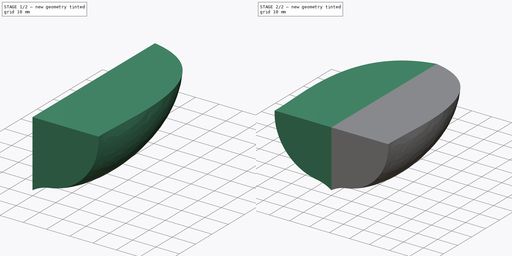
[diagram: build sequence overview — one tinted view per stage of 2, left to right]
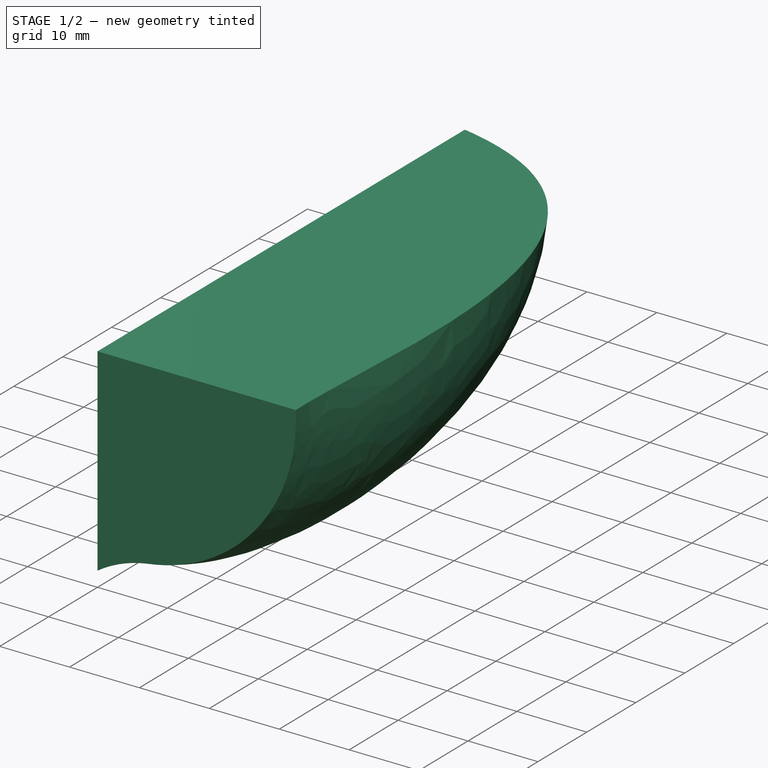
[diagram: stage 1 of 2 — iso view after this stage's code; geometry added in this stage tinted green]
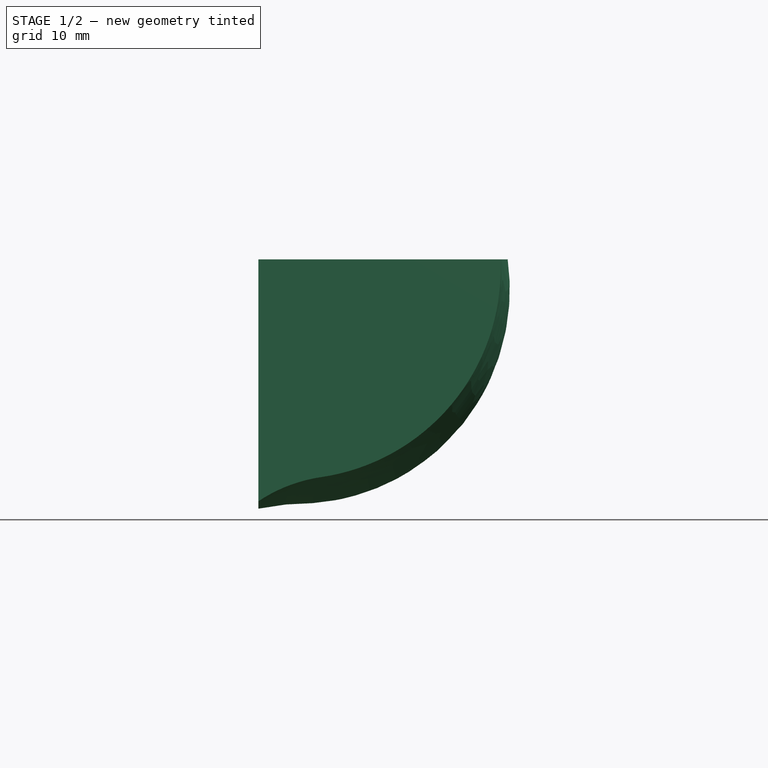
[diagram: stage 1 of 2 — front view after this stage's code; geometry added in this stage tinted green]
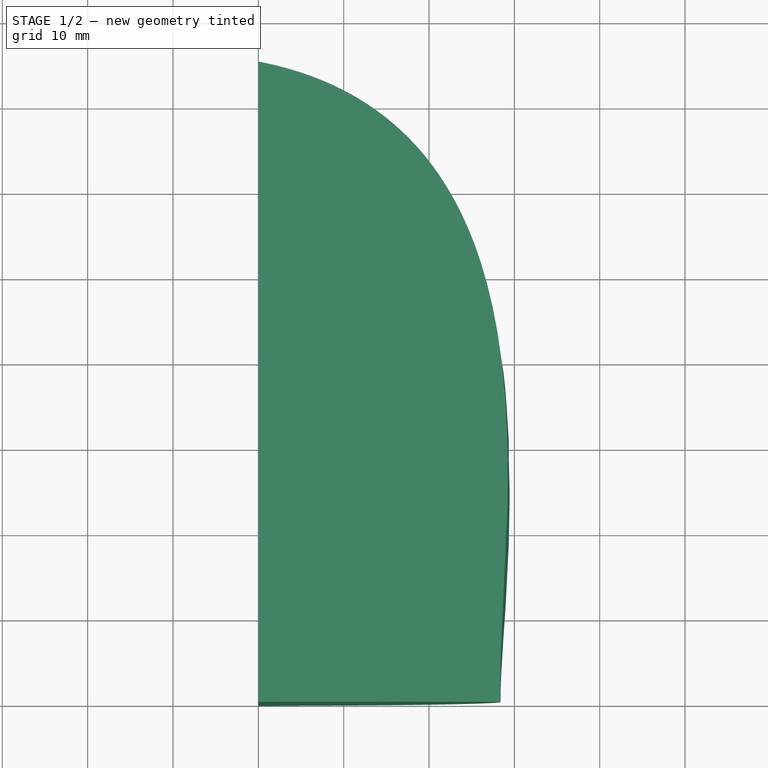
[diagram: stage 1 of 2 — top view after this stage's code; geometry added in this stage tinted green]
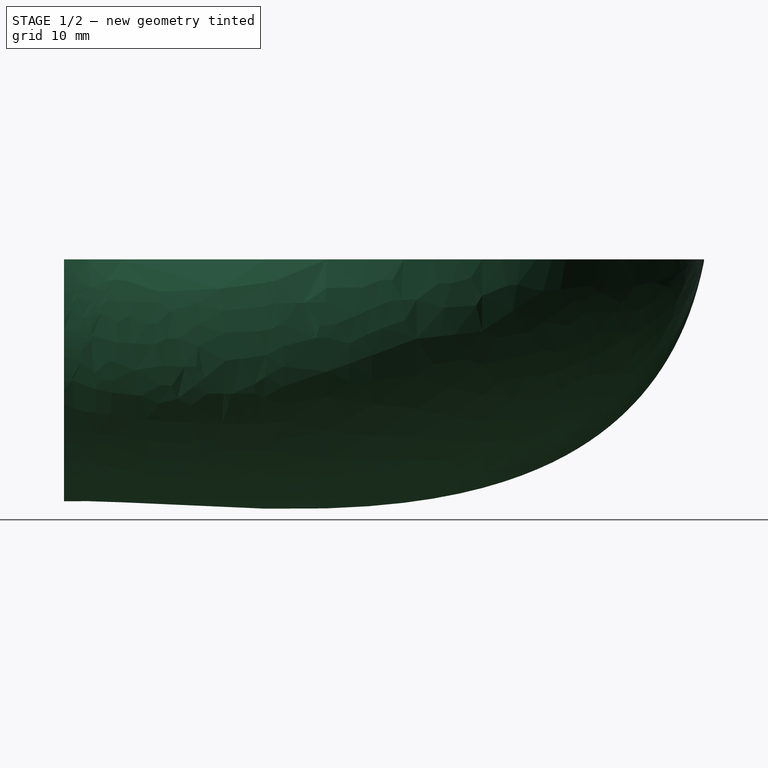
[diagram: stage 1 of 2 — right view after this stage's code; geometry added in this stage tinted green]
FCSTD DOCUMENT  (FreeCAD 0.20R29410 (Git))
Label: MangoJelly_Solutions_Tutorial_Ep11_4
License: All rights reserved
LicenseURL: http://en.wikipedia.org/wiki/All_rights_reserved
objects: Sketcher::SketchObject×4, Part::Loft×1, Part::Mirroring×1, Part::Fuse×1
note: 7 computed .brp shape members not serialized (recipe doc carries the construction recipe); baked Part::Feature solids carry a one-line shape summary decoded from their .brp

FEATURE [Sketcher::SketchObject] Sketch
  FullyConstrained = false
  Placement = pos=(0,0,0) rot=(1,0,0;1.5708rad)
  sketch-geometry (5):
    g0: LineSegment StartX=0 StartY=0 StartZ=0 EndX=-1.8e-15 EndY=-28.3554 EndZ=0
    g1: LineSegment StartX=0 StartY=0 StartZ=0 EndX=-28.3554 EndY=-2e-15 EndZ=0
    g2: GeomPoint X=-7.35991 Y=-25.5202 Z=0
    g3: ArcOfCircle CenterX=-3.80244 CenterY=-1.19681 CenterZ=0 NormalX=0 NormalY=0 NormalZ=1 AngleXU=0 Radius=24.5821 StartAngle=3.09289 EndAngle=4.56716
    g4: ArcOfCircle CenterX=-9.94636 CenterY=-43.2044 CenterZ=0 NormalX=0 NormalY=0 NormalZ=1 AngleXU=0 Radius=17.8724 StartAngle=0.980604 EndAngle=1.42557
  constraints (9):
    c: Coincident(g0,g-1)
    c: PointOnObject(g0,g-2)
    c: Coincident(g1,g0)
    c: PointOnObject(g1,g-1)
    c: Coincident(g3,g1)
    c: Coincident(g3,g2)
    c: Coincident(g4,g0)
    c: Tangent(g4,g3) = 1.5708
    c: Equal(g0,g1)
FEATURE [Sketcher::SketchObject] Sketch001
  FullyConstrained = false
  Placement = pos=(0,45,0) rot=(1,0,0;1.5708rad)
  sketch-geometry (5):
    g0: LineSegment StartX=0 StartY=0 StartZ=0 EndX=1.8e-15 EndY=-27.7199 EndZ=0
    g1: LineSegment StartX=0 StartY=0 StartZ=0 EndX=-27.7199 EndY=0 EndZ=0
    g2: GeomPoint X=-6.56665 Y=-25.562 Z=0
    g3: ArcOfCircle CenterX=-2.6976 CenterY=-0.826855 CenterZ=0 NormalX=0 NormalY=0 NormalZ=1 AngleXU=0 Radius=25.0359 StartAngle=3.10856 EndAngle=4.55723
    g4: ArcOfCircle CenterX=-9.87134 CenterY=-46.6892 CenterZ=0 NormalX=0 NormalY=0 NormalZ=1 AngleXU=0 Radius=21.384 StartAngle=1.09097 EndAngle=1.41563
  constraints (9):
    c: Coincident(g0,g-1)
    c: PointOnObject(g0,g-2)
    c: Coincident(g1,g0)
    c: PointOnObject(g1,g-1)
    c: Coincident(g3,g1)
    c: Coincident(g3,g2)
    c: Coincident(g4,g0)
    c: Tangent(g4,g3) = 1.5708
    c: Equal(g0,g1)
FEATURE [Sketcher::SketchObject] Sketch002
  FullyConstrained = false
  Placement = pos=(0,72,0) rot=(1,0,0;1.5708rad)
  sketch-geometry (5):
    g0: LineSegment StartX=0 StartY=0 StartZ=0 EndX=0 EndY=-9.34298 EndZ=0
    g1: LineSegment StartX=0 StartY=0 StartZ=0 EndX=-9.34298 EndY=-9e-16 EndZ=0
    g2: GeomPoint X=-2.66942 Y=-7.49351 Z=0
    g3: ArcOfCircle CenterX=0.72612 CenterY=2.24891 CenterZ=0 NormalX=0 NormalY=0 NormalZ=1 AngleXU=0 Radius=10.3172 StartAngle=3.36133 EndAngle=4.37702
    g4: ArcOfCircle CenterX=-4.66908 CenterY=-13.2309 CenterZ=0 NormalX=0 NormalY=0 NormalZ=1 AngleXU=0 Radius=6.07586 StartAngle=0.694358 EndAngle=1.23543
  constraints (9):
    c: Coincident(g0,g-1)
    c: PointOnObject(g0,g-2)
    c: Coincident(g1,g0)
    c: PointOnObject(g1,g-1)
    c: Coincident(g3,g1)
    c: Coincident(g3,g2)
    c: Equal(g1,g0)
    c: Coincident(g4,g0)
    c: Tangent(g4,g3) = 1.5708
FEATURE [Sketcher::SketchObject] Sketch003
  FullyConstrained = false
  Placement = pos=(0,75,0) rot=(1,0,0;1.5708rad)
  sketch-geometry (5):
    g0: LineSegment StartX=0 StartY=0 StartZ=0 EndX=0 EndY=-0.243526 EndZ=0
    g1: LineSegment StartX=0 StartY=0 StartZ=0 EndX=-0.243526 EndY=0 EndZ=0
    g2: GeomPoint X=-0.154774 Y=-0.139243 Z=0
    g3: ArcOfCircle CenterX=-0.0391518 CenterY=0.0323596 CenterZ=0 NormalX=0 NormalY=0 NormalZ=1 AngleXU=0 Radius=0.20692 StartAngle=3.29862 EndAngle=4.11948
    g4: LineSegment StartX=-0.154774 StartY=-0.139243 StartZ=0 EndX=0 EndY=-0.243526 EndZ=0
  constraints (9):
    c: Coincident(g0,g-1)
    c: PointOnObject(g0,g-2)
    c: Coincident(g1,g0)
    c: PointOnObject(g1,g-1)
    c: Coincident(g3,g1)
    c: Coincident(g3,g2)
    c: Equal(g1,g0)
    c: Coincident(g4,g0)
    c: Tangent(g4,g3) = -1.5708
FEATURE [Part::Loft] Loft
  Closed = false
  MaxDegree = 5
  Ruled = false
  Sections = -> [Sketch,Sketch001,Sketch002,Sketch003]
  Solid = true
FEATURE [Part::Mirroring] Part__Mirroring  label="Loft (Mirror #1)"
  Base = (0,0,0)
  Normal = (1,0,0)
  Source = -> Loft
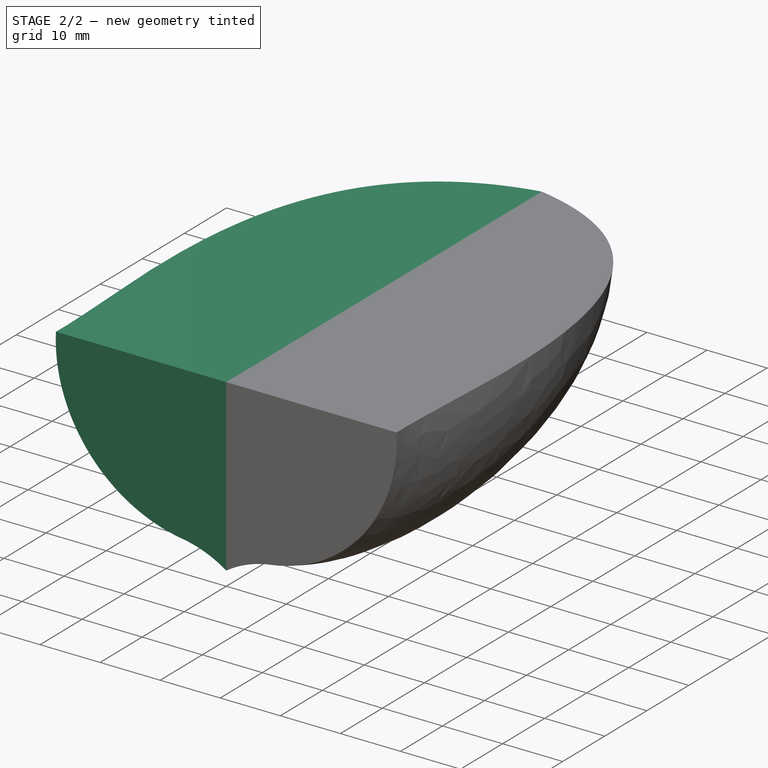
[diagram: stage 2 of 2 — iso view after this stage's code; geometry added in this stage tinted green]
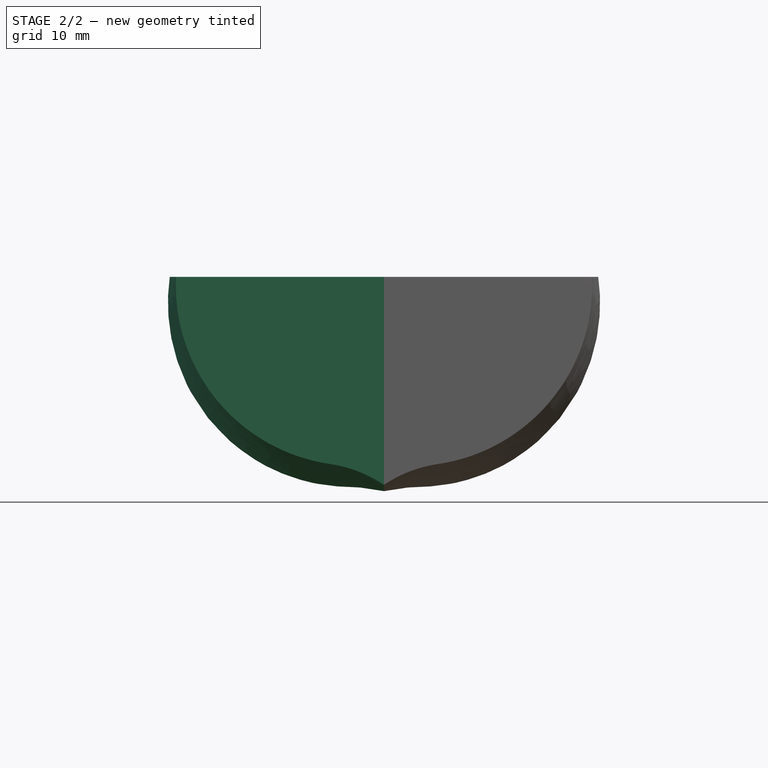
[diagram: stage 2 of 2 — front view after this stage's code; geometry added in this stage tinted green]
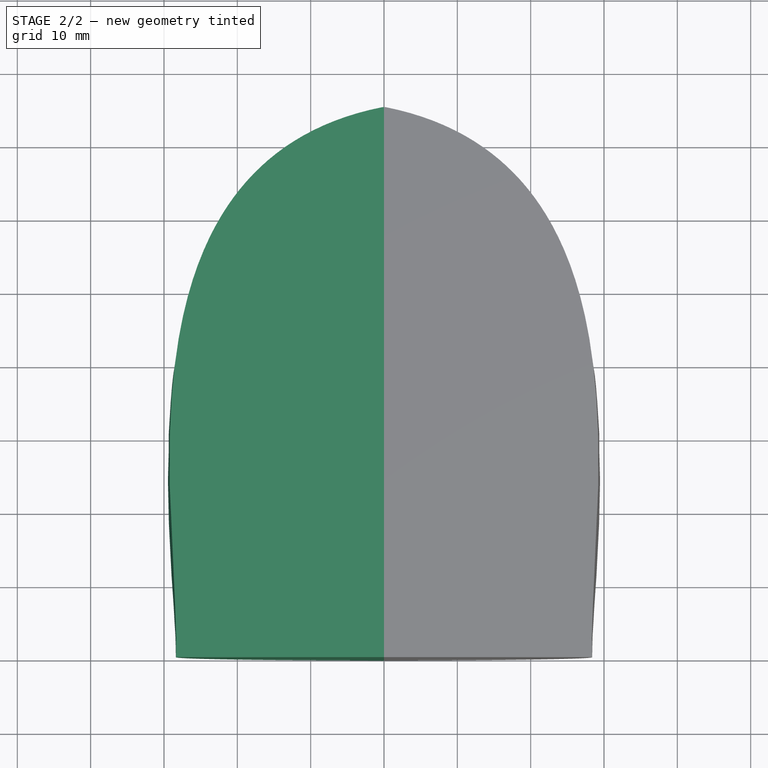
[diagram: stage 2 of 2 — top view after this stage's code; geometry added in this stage tinted green]
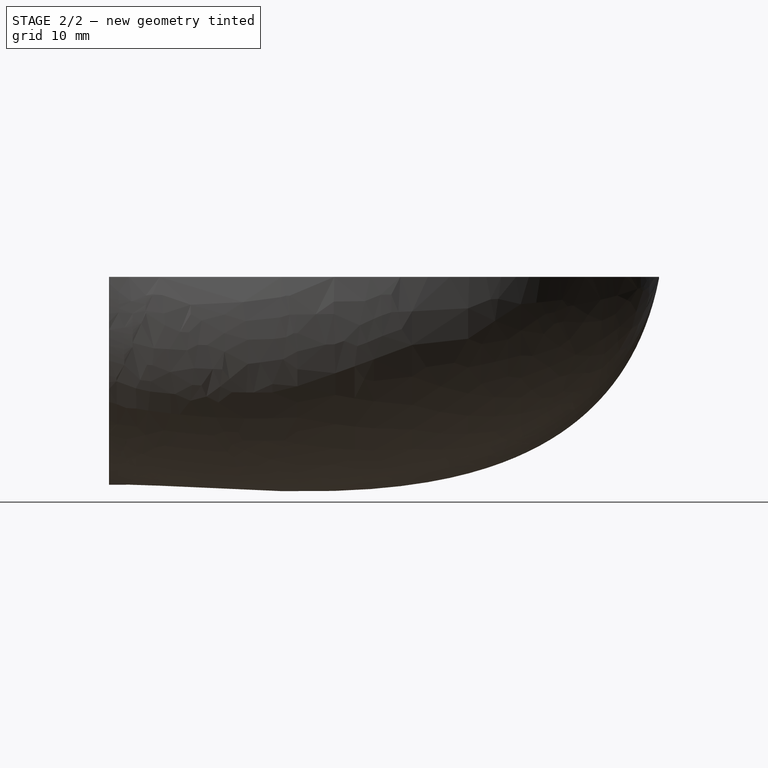
[diagram: stage 2 of 2 — right view after this stage's code; geometry added in this stage tinted green]
FEATURE [Part::Fuse] Fusion
  Base = -> Loft
  Tool = -> Part__Mirroring
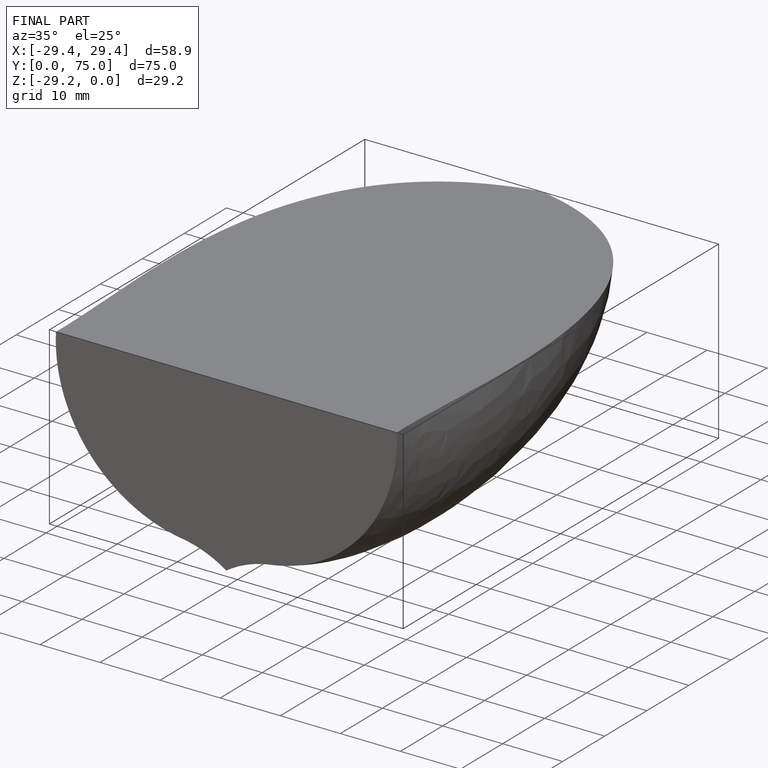
[diagram: finished part — iso view with bounding-box wireframe]
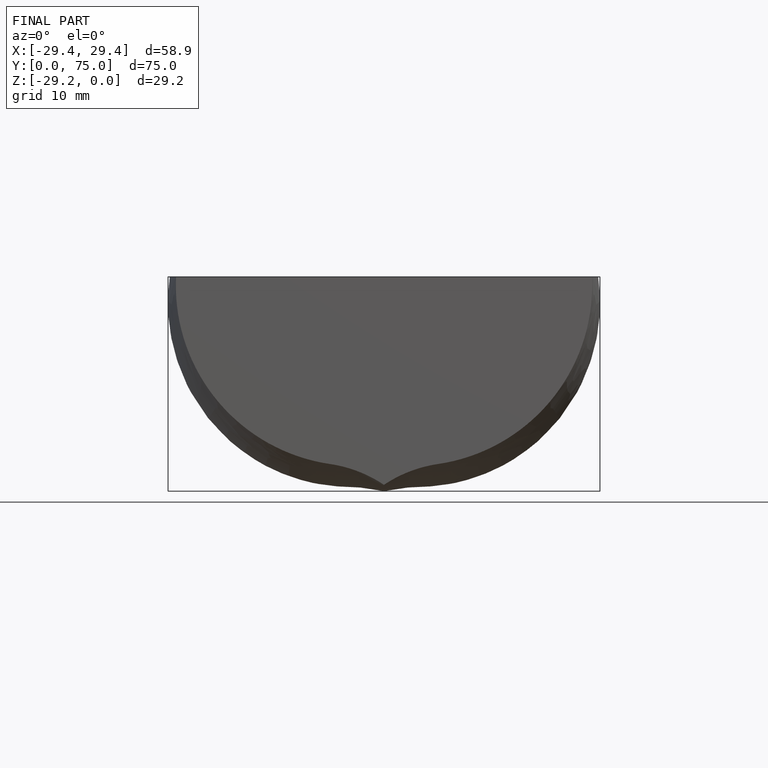
[diagram: finished part — front view with bounding-box wireframe]
